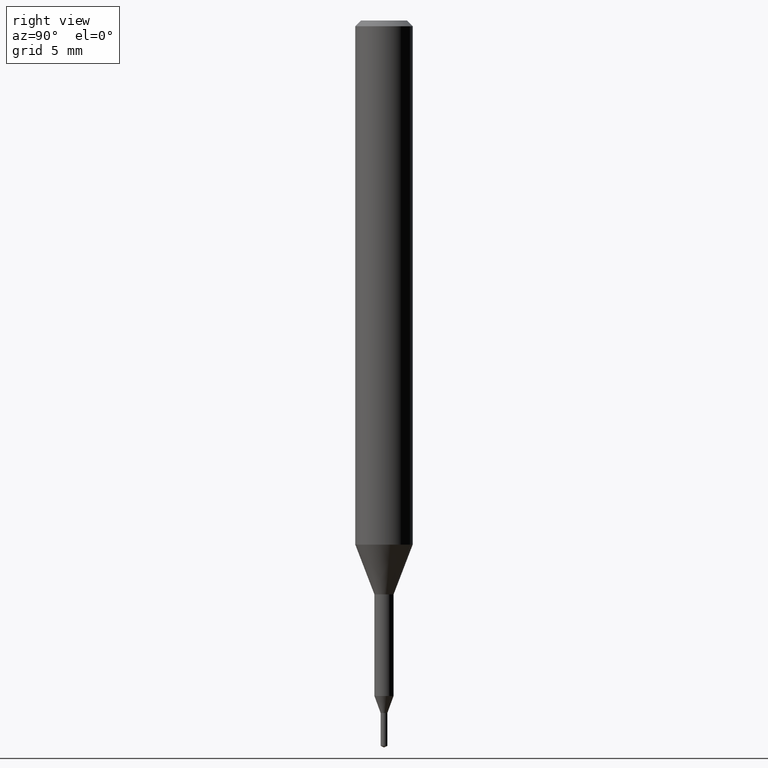
[diagram: clean part render]
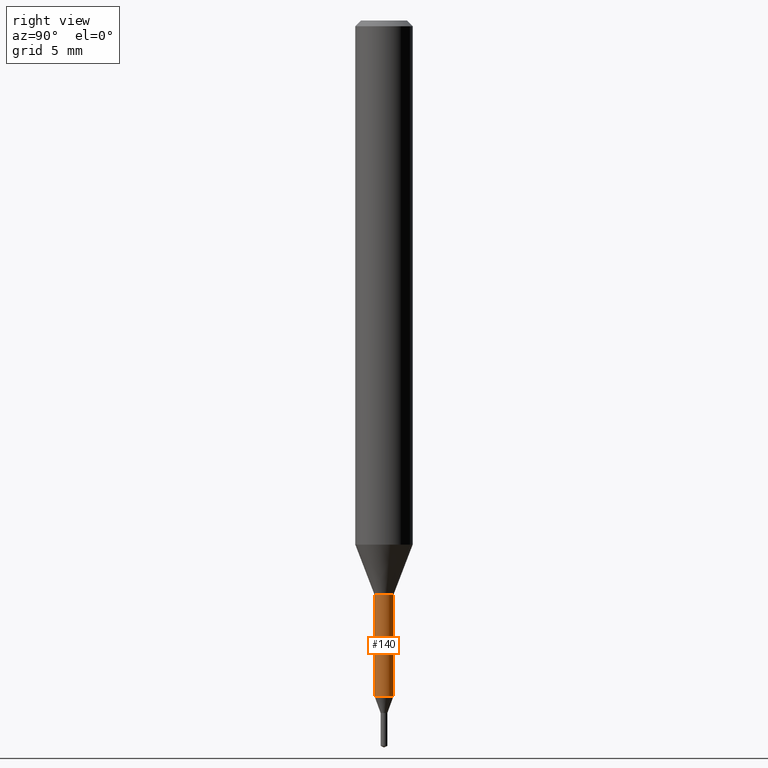
[diagram: same view with one face highlighted and labeled with its STEP entity id]
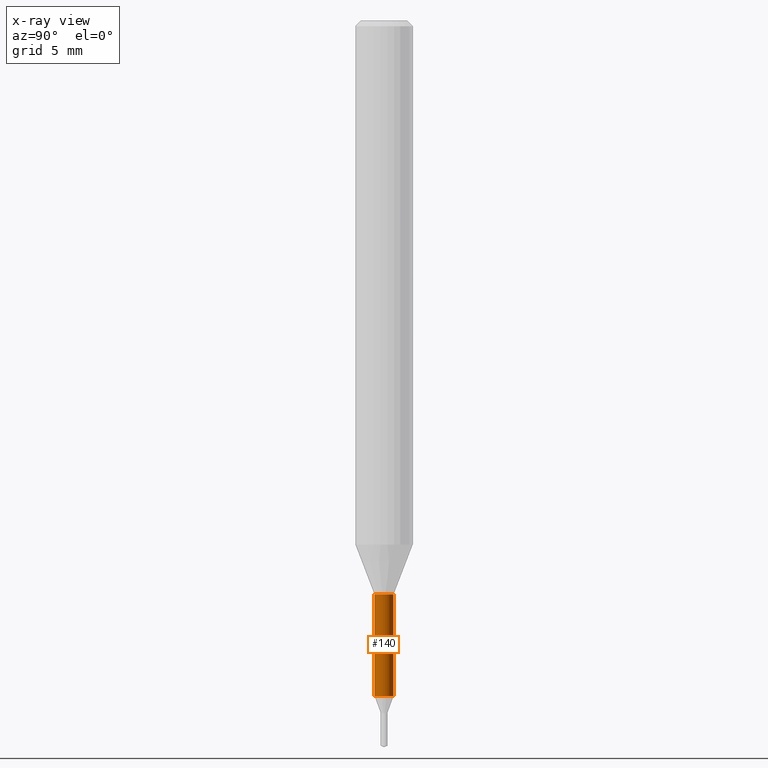
[diagram: x-ray of the same camera — body ghosted, the highlighted face saturated]
A machine part, right view. The second image highlights one B-rep face of the part: STEP entity #140.
The next image is the same camera in x-ray: the body ghosted, the highlighted face saturated — about 0% of this face is hidden behind the body in this view.
In plain terms, the highlighted cylindrical surface (edge-blend (fillet) strip) has radius 0.5 mm, axis along (-0, -0, 1).
Its self-contained STEP definition (entity closure, byte-faithful):
#114=VERTEX_POINT('',#293);
#130=EDGE_CURVE('',#178,#136,#313,.T.);
#136=VERTEX_POINT('',#319);
#140=ADVANCED_FACE('',(#324),#325,.T.);
#146=EDGE_CURVE('',#136,#114,#331,.T.);
#178=VERTEX_POINT('',#365);
#194=EDGE_CURVE('',#114,#212,#384,.T.);
#200=EDGE_CURVE('',#178,#212,#391,.T.);
#212=VERTEX_POINT('',#403);
#293=CARTESIAN_POINT('',(6.12241946593498E-017,-0.49995,-35.307));
#313=LINE('',#506,#507);
#319=CARTESIAN_POINT('',(0.0,0.49995,-35.307));
#324=FACE_OUTER_BOUND('',#522,.T.);
#325=CYLINDRICAL_SURFACE('',#523,0.49995);
#331=CIRCLE('',#532,0.49995);
#365=CARTESIAN_POINT('',(0.0,0.49995,-30.0));
#384=LINE('',#596,#597);
#391=CIRCLE('',#605,0.49995);
#403=CARTESIAN_POINT('',(6.12241946593498E-017,-0.49995,-30.0));
#506=CARTESIAN_POINT('',(-6.12241946593498E-017,0.49995,-32.6535));
#507=VECTOR('',#754,1.0);
#522=EDGE_LOOP('',(#765,#766,#767,#768));
#523=AXIS2_PLACEMENT_3D('',#769,#770,#771);
#532=AXIS2_PLACEMENT_3D('',#773,#774,#775);
#596=CARTESIAN_POINT('',(6.12241946593498E-017,-0.49995,-32.6535));
#597=VECTOR('',#836,1.0);
#605=AXIS2_PLACEMENT_3D('',#845,#846,#847);
#754=DIRECTION('',(0.0,0.0,-1.0));
#765=ORIENTED_EDGE('',*,*,#130,.F.);
#766=ORIENTED_EDGE('',*,*,#200,.T.);
#767=ORIENTED_EDGE('',*,*,#194,.F.);
#768=ORIENTED_EDGE('',*,*,#146,.F.);
#769=CARTESIAN_POINT('',(0.0,0.0,-32.6535));
#770=DIRECTION('',(-0.0,-0.0,1.0));
#771=DIRECTION('',(0.0,1.0,0.0));
#773=CARTESIAN_POINT('',(0.0,0.0,-35.307));
#774=DIRECTION('',(0.0,0.0,-1.0));
#775=DIRECTION('',(0.0,1.0,0.0));
#836=DIRECTION('',(-0.0,-0.0,1.0));
#845=CARTESIAN_POINT('',(0.0,0.0,-30.0));
#846=DIRECTION('',(0.0,0.0,-1.0));
#847=DIRECTION('',(0.0,1.0,0.0));